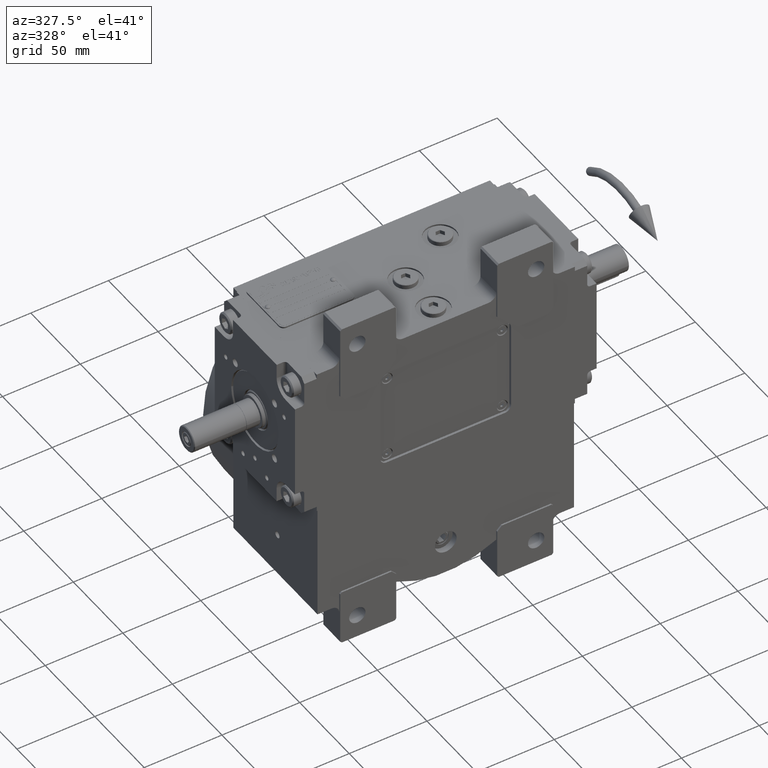
[diagram: clean part render]
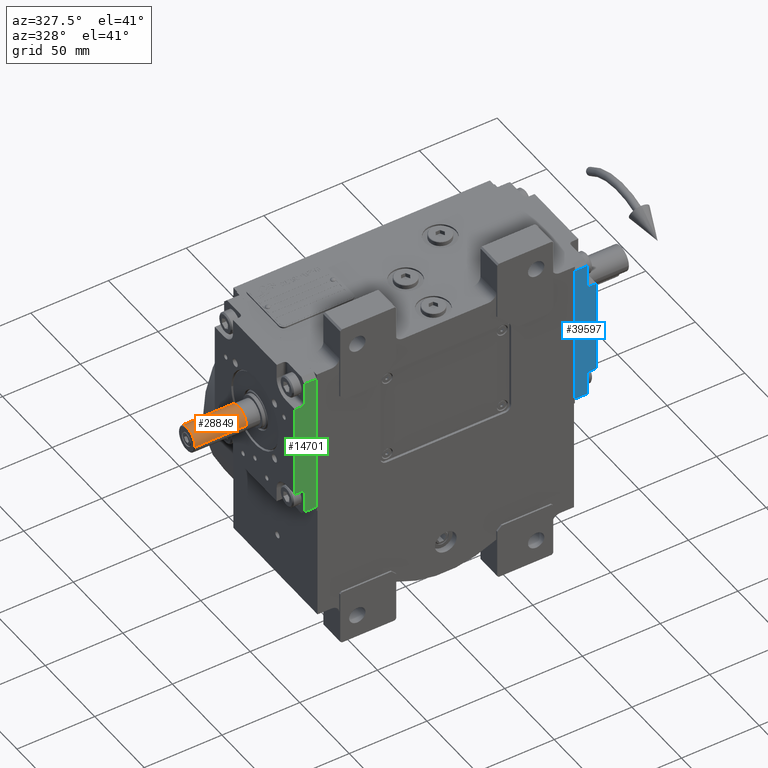
[diagram: same view with three faces highlighted in distinct colors, each labeled with its STEP entity id]
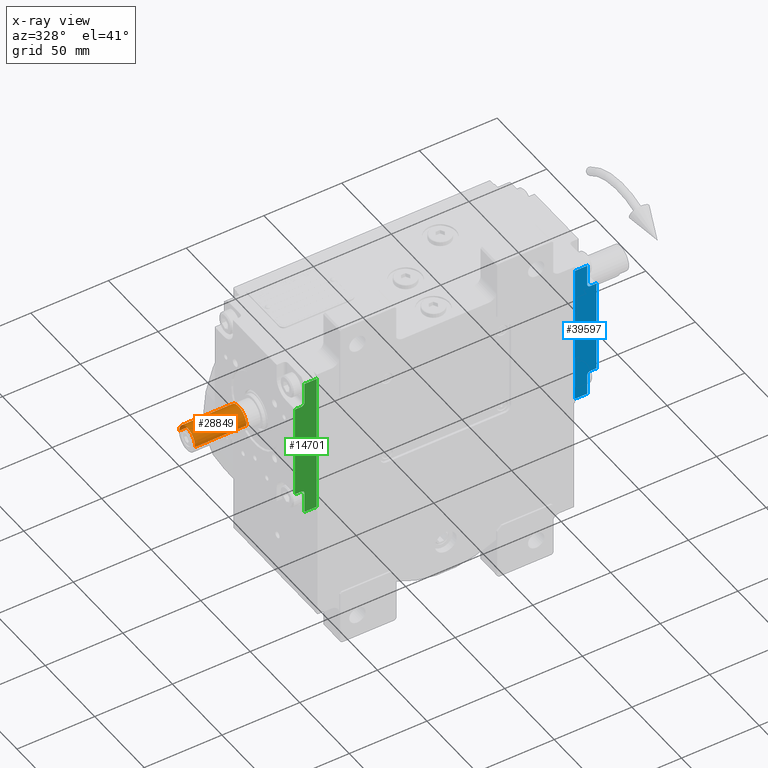
[diagram: x-ray of the same camera — body ghosted, the three highlighted faces saturated]
A machine part, auxiliary view with three faces highlighted in distinct colors.
The next image is the same camera in x-ray (body ghosted, the three faces saturated) — at least one of them is partly hidden behind the body in this view.
Their STEP definitions:

[orange] entity #28849 — the highlighted cylindrical surface (edge-blend (fillet) strip) has radius 8 mm, axis along (-1, 0, -0).
#780 = DIRECTION ( 'NONE',  ( 1.797417062147531962E-14, 0.000000000000000000, 1.000000000000000000 ) ) ;
#4080 = ORIENTED_EDGE ( 'NONE', *, *, #16221, .F. ) ;
#4341 = VERTEX_POINT ( 'NONE', #53684 ) ;
#4720 = EDGE_LOOP ( 'NONE', ( #6996, #39008, #7967, #4080 ) ) ;
#6996 = ORIENTED_EDGE ( 'NONE', *, *, #39639, .F. ) ;
#7967 = ORIENTED_EDGE ( 'NONE', *, *, #28014, .F. ) ;
#8633 = CIRCLE ( 'NONE', #49904, 8.000000000000000000 ) ;
#9045 = VERTEX_POINT ( 'NONE', #38044 ) ;
#12688 = LINE ( 'NONE', #42128, #44449 ) ;
#13989 = DIRECTION ( 'NONE',  ( -1.774068363909806881E-14, -2.168404344971008868E-16, -1.000000000000000000 ) ) ;
#16221 = EDGE_CURVE ( 'NONE', #4341, #32311, #8633, .T. ) ;
#18198 = AXIS2_PLACEMENT_3D ( 'NONE', #41852, #52189, #46088 ) ;
#18820 = DIRECTION ( 'NONE',  ( -2.220446049250370273E-16, -1.000000000000000000, 2.220446049249956368E-16 ) ) ;
#25044 = DIRECTION ( 'NONE',  ( 5.028988270783950259E-30, 1.000000000000000000, 3.217488641336500757E-29 ) ) ;
#28014 = EDGE_CURVE ( 'NONE', #32311, #9045, #57178, .T. ) ;
#28849 = ADVANCED_FACE ( 'NONE', ( #54512 ), #59337, .T. ) ;
#31580 = VECTOR ( 'NONE', #62356, 1000.000000000000000 ) ;
#32311 = VERTEX_POINT ( 'NONE', #43069 ) ;
#33076 = DIRECTION ( 'NONE',  ( -5.028988270783950259E-30, -1.000000000000000000, -3.217488641336500757E-29 ) ) ;
#35067 = CARTESIAN_POINT ( 'NONE',  ( 0.000000000000000000, 18.50000000000054357, -8.881784196997377044E-16 ) ) ;
#38044 = CARTESIAN_POINT ( 'NONE',  ( 0.000000000000000000, 18.50000000000054357, 7.999999999999965361 ) ) ;
#39008 = ORIENTED_EDGE ( 'NONE', *, *, #63212, .F. ) ;
#39639 = EDGE_CURVE ( 'NONE', #48112, #4341, #12688, .T. ) ;
#40770 = CIRCLE ( 'NONE', #62431, 8.000000000000000000 ) ;
#41852 = CARTESIAN_POINT ( 'NONE',  ( -8.326672684688674053E-14, -15.00000000000001421, -3.019858152799185818E-27 ) ) ;
#42128 = CARTESIAN_POINT ( 'NONE',  ( -5.828670879282071837E-13, 18.50000000000054357, -8.000000000000035527 ) ) ;
#43069 = CARTESIAN_POINT ( 'NONE',  ( 1.065558752344486493E-08, -14.50000000007528556, 7.999999999924675365 ) ) ;
#44449 = VECTOR ( 'NONE', #33076, 1000.000000000000000 ) ;
#46088 = DIRECTION ( 'NONE',  ( -1.809663530139005476E-14, 0.000000000000000000, -1.000000000000000000 ) ) ;
#48112 = VERTEX_POINT ( 'NONE', #52487 ) ;
#49904 = AXIS2_PLACEMENT_3D ( 'NONE', #53440, #18820, #13989 ) ;
#52189 = DIRECTION ( 'NONE',  ( -5.028988270783950259E-30, -1.000000000000000000, -3.217488641336500757E-29 ) ) ;
#52487 = CARTESIAN_POINT ( 'NONE',  ( -6.106226635438360972E-13, 18.50000000000054357, -8.000000000000035527 ) ) ;
#53440 = CARTESIAN_POINT ( 'NONE',  ( -8.326672684688674053E-14, -14.50000000000001243, -8.881784197025048313E-16 ) ) ;
#53684 = CARTESIAN_POINT ( 'NONE',  ( -8.326672684688674053E-14, -14.50000000000001243, -8.000000000000035527 ) ) ;
#54512 = FACE_OUTER_BOUND ( 'NONE', #4720, .T. ) ;
#57178 = LINE ( 'NONE', #60868, #31580 ) ;
#59337 = CYLINDRICAL_SURFACE ( 'NONE', #18198, 8.000000000000000000 ) ;
#60868 = CARTESIAN_POINT ( 'NONE',  ( 1.276756478318930021E-12, -14.50000000000001243, 7.999999999999965361 ) ) ;
#62356 = DIRECTION ( 'NONE',  ( 5.028988270783950259E-30, 1.000000000000000000, 3.217488641336500757E-29 ) ) ;
#62431 = AXIS2_PLACEMENT_3D ( 'NONE', #35067, #25044, #780 ) ;
#63212 = EDGE_CURVE ( 'NONE', #9045, #48112, #40770, .T. ) ;

[blue] entity #39597 — the highlighted planar face has unit normal (0, -1, 0).
#460 = AXIS2_PLACEMENT_3D ( 'NONE', #49788, #49482, #24587 ) ;
#955 = VECTOR ( 'NONE', #4369, 1000.000000000000000 ) ;
#1065 = LINE ( 'NONE', #59581, #1593 ) ;
#1593 = VECTOR ( 'NONE', #35020, 1000.000000000000000 ) ;
#1613 = ORIENTED_EDGE ( 'NONE', *, *, #19924, .T. ) ;
#1838 = CARTESIAN_POINT ( 'NONE',  ( 40.50000000000052580, -8.000000000001062261, 32.50000000000026290 ) ) ;
#1991 = VERTEX_POINT ( 'NONE', #1838 ) ;
#2014 = DIRECTION ( 'NONE',  ( -8.437694987151237039E-15, 2.109423746787905501E-15, -1.000000000000000000 ) ) ;
#2468 = AXIS2_PLACEMENT_3D ( 'NONE', #56146, #11861, #46793 ) ;
#2639 = DIRECTION ( 'NONE',  ( -8.437694987151237039E-15, 2.109423746787905501E-15, -1.000000000000000000 ) ) ;
#4193 = ORIENTED_EDGE ( 'NONE', *, *, #56208, .T. ) ;
#4369 = DIRECTION ( 'NONE',  ( -8.437694987151237039E-15, 2.109423746787905501E-15, -1.000000000000000000 ) ) ;
#5698 = CARTESIAN_POINT ( 'NONE',  ( 40.50000000000079581, -1.054711873393898713E-12, 49.00000000000000000 ) ) ;
#5702 = CARTESIAN_POINT ( 'NONE',  ( 40.50000000000079581, -14.00000000000105338, 30.50000000000026290 ) ) ;
#6194 = EDGE_CURVE ( 'NONE', #6780, #39679, #14690, .T. ) ;
#6227 = AXIS2_PLACEMENT_3D ( 'NONE', #5698, #30941, #53071 ) ;
#6780 = VERTEX_POINT ( 'NONE', #44709 ) ;
#7378 = VERTEX_POINT ( 'NONE', #16766 ) ;
#8235 = VERTEX_POINT ( 'NONE', #53999 ) ;
#8539 = CARTESIAN_POINT ( 'NONE',  ( 40.50000000000026290, -14.00000000000105338, -30.50000000000000000 ) ) ;
#9413 = CARTESIAN_POINT ( 'NONE',  ( 40.50000000000026290, -14.00000000000105338, -30.50000000000000000 ) ) ;
#9707 = CIRCLE ( 'NONE', #2468, 2.000000000000000000 ) ;
#10556 = FACE_OUTER_BOUND ( 'NONE', #35904, .T. ) ;
#10863 = LINE ( 'NONE', #50307, #35858 ) ;
#11088 = CARTESIAN_POINT ( 'NONE',  ( 40.50000000000052580, -8.000000000001062261, 46.00000000000000000 ) ) ;
#11861 = DIRECTION ( 'NONE',  ( -1.000000000000000000, 2.320366121466573698E-14, -8.437694987151233883E-15 ) ) ;
#13709 = LINE ( 'NONE', #8539, #26572 ) ;
#14690 = LINE ( 'NONE', #38018, #955 ) ;
#16071 = EDGE_CURVE ( 'NONE', #43455, #22175, #31208, .T. ) ;
#16621 = CARTESIAN_POINT ( 'NONE',  ( 40.50000000000079581, -14.00000000000105338, 30.50000000000026290 ) ) ;
#16766 = CARTESIAN_POINT ( 'NONE',  ( 40.50000000000052580, -8.000000000001062261, 46.00000000000000000 ) ) ;
#17853 = EDGE_CURVE ( 'NONE', #34146, #7378, #1065, .T. ) ;
#19004 = CARTESIAN_POINT ( 'NONE',  ( 40.50000000000079581, -14.00000000000105338, 30.50000000000026290 ) ) ;
#19551 = CARTESIAN_POINT ( 'NONE',  ( 40.50000000000052580, -1.054711873393898713E-12, 46.00000000000000000 ) ) ;
#19924 = EDGE_CURVE ( 'NONE', #1991, #48728, #9707, .T. ) ;
#21475 = ORIENTED_EDGE ( 'NONE', *, *, #60347, .T. ) ;
#22175 = VERTEX_POINT ( 'NONE', #9413 ) ;
#23236 = EDGE_CURVE ( 'NONE', #34146, #29499, #46319, .T. ) ;
#24211 = DIRECTION ( 'NONE',  ( -2.320366121466573698E-14, 1.000000000000000000, -2.109423746787906290E-15 ) ) ;
#24587 = DIRECTION ( 'NONE',  ( 6.938893903907222067E-15, 0.000000000000000000, 1.000000000000000000 ) ) ;
#25679 = ORIENTED_EDGE ( 'NONE', *, *, #26104, .F. ) ;
#26104 = EDGE_CURVE ( 'NONE', #43455, #48728, #49093, .T. ) ;
#26572 = VECTOR ( 'NONE', #33442, 1000.000000000000000 ) ;
#28759 = DIRECTION ( 'NONE',  ( 2.320366121466573698E-14, -1.000000000000000000, 2.109423746787906290E-15 ) ) ;
#29499 = VERTEX_POINT ( 'NONE', #52114 ) ;
#30149 = EDGE_CURVE ( 'NONE', #29499, #39679, #10863, .T. ) ;
#30941 = DIRECTION ( 'NONE',  ( 1.000000000000000000, -2.320366121466569912E-14, -8.437694987151285948E-15 ) ) ;
#31208 = LINE ( 'NONE', #16621, #39616 ) ;
#32537 = VECTOR ( 'NONE', #24211, 1000.000000000000000 ) ;
#33442 = DIRECTION ( 'NONE',  ( -2.320366121466573698E-14, 1.000000000000000000, -2.109423746787906290E-15 ) ) ;
#34146 = VERTEX_POINT ( 'NONE', #38775 ) ;
#34311 = CARTESIAN_POINT ( 'NONE',  ( 40.50000000000000000, -8.000000000001033840, -46.00000000000000000 ) ) ;
#35020 = DIRECTION ( 'NONE',  ( 2.320366121466573698E-14, -1.000000000000000000, 2.109423746787906290E-15 ) ) ;
#35858 = VECTOR ( 'NONE', #28759, 1000.000000000000000 ) ;
#35904 = EDGE_LOOP ( 'NONE', ( #50548, #39755, #57135, #45464, #1613, #25679, #36531, #21475, #4193, #47230 ) ) ;
#36531 = ORIENTED_EDGE ( 'NONE', *, *, #16071, .T. ) ;
#36609 = CIRCLE ( 'NONE', #460, 2.000000000000001776 ) ;
#38018 = CARTESIAN_POINT ( 'NONE',  ( 40.50000000000000000, -8.000000000001048051, -32.50000000000000000 ) ) ;
#38494 = CARTESIAN_POINT ( 'NONE',  ( 40.50000000000052580, -10.00000000000106404, 30.50000000000026290 ) ) ;
#38775 = CARTESIAN_POINT ( 'NONE',  ( 40.50000000000052580, -1.054711873393898713E-12, 46.00000000000000000 ) ) ;
#39597 = ADVANCED_FACE ( 'NONE', ( #10556 ), #49979, .T. ) ;
#39616 = VECTOR ( 'NONE', #50908, 1000.000000000000000 ) ;
#39679 = VERTEX_POINT ( 'NONE', #34311 ) ;
#39755 = ORIENTED_EDGE ( 'NONE', *, *, #23236, .F. ) ;
#39816 = EDGE_CURVE ( 'NONE', #7378, #1991, #41154, .T. ) ;
#41154 = LINE ( 'NONE', #11088, #47539 ) ;
#43089 = VECTOR ( 'NONE', #2014, 1000.000000000000000 ) ;
#43455 = VERTEX_POINT ( 'NONE', #5702 ) ;
#44709 = CARTESIAN_POINT ( 'NONE',  ( 40.50000000000000000, -8.000000000001048051, -32.50000000000000000 ) ) ;
#45464 = ORIENTED_EDGE ( 'NONE', *, *, #39816, .T. ) ;
#46319 = LINE ( 'NONE', #19551, #43089 ) ;
#46793 = DIRECTION ( 'NONE',  ( -2.428612866367529932E-14, 1.000000000000000000, -3.469446951953614189E-15 ) ) ;
#47230 = ORIENTED_EDGE ( 'NONE', *, *, #6194, .T. ) ;
#47539 = VECTOR ( 'NONE', #2639, 1000.000000000000000 ) ;
#48728 = VERTEX_POINT ( 'NONE', #38494 ) ;
#49093 = LINE ( 'NONE', #19004, #32537 ) ;
#49482 = DIRECTION ( 'NONE',  ( -1.000000000000000000, 2.320366121466573698E-14, -8.437694987151233883E-15 ) ) ;
#49788 = CARTESIAN_POINT ( 'NONE',  ( 40.50000000000000000, -10.00000000000104983, -32.50000000000000000 ) ) ;
#49979 = PLANE ( 'NONE',  #6227 ) ;
#50307 = CARTESIAN_POINT ( 'NONE',  ( 40.50000000000000000, -5.273559366969493567E-13, -46.00000000000000000 ) ) ;
#50548 = ORIENTED_EDGE ( 'NONE', *, *, #30149, .F. ) ;
#50908 = DIRECTION ( 'NONE',  ( -8.437694987151237039E-15, 2.109423746787905501E-15, -1.000000000000000000 ) ) ;
#52114 = CARTESIAN_POINT ( 'NONE',  ( 40.50000000000000000, -5.273559366969493567E-13, -46.00000000000000000 ) ) ;
#53071 = DIRECTION ( 'NONE',  ( -8.437694987151237039E-15, 2.109423746787905501E-15, -1.000000000000000000 ) ) ;
#53999 = CARTESIAN_POINT ( 'NONE',  ( 40.50000000000000000, -10.00000000000104983, -30.50000000000000000 ) ) ;
#56146 = CARTESIAN_POINT ( 'NONE',  ( 40.50000000000052580, -10.00000000000106404, 32.50000000000026290 ) ) ;
#56208 = EDGE_CURVE ( 'NONE', #8235, #6780, #36609, .T. ) ;
#57135 = ORIENTED_EDGE ( 'NONE', *, *, #17853, .T. ) ;
#59581 = CARTESIAN_POINT ( 'NONE',  ( 40.50000000000052580, -1.054711873393898713E-12, 46.00000000000000000 ) ) ;
#60347 = EDGE_CURVE ( 'NONE', #22175, #8235, #13709, .T. ) ;

[green] entity #14701 — the highlighted planar face has unit normal (0, -1, -0).
#20 = VECTOR ( 'NONE', #47608, 1000.000000000000000 ) ;
#1153 = ORIENTED_EDGE ( 'NONE', *, *, #9380, .T. ) ;
#1355 = EDGE_CURVE ( 'NONE', #25239, #55552, #21691, .T. ) ;
#1583 = CARTESIAN_POINT ( 'NONE',  ( -40.50000000000105871, -10.00000000000000888, -32.50000000000107292 ) ) ;
#1684 = VERTEX_POINT ( 'NONE', #41558 ) ;
#2040 = EDGE_CURVE ( 'NONE', #7522, #1684, #47077, .T. ) ;
#2180 = LINE ( 'NONE', #21901, #4893 ) ;
#2618 = CARTESIAN_POINT ( 'NONE',  ( -40.49999999999894840, -9.999999999999994671, 30.49999999999868194 ) ) ;
#3282 = DIRECTION ( 'NONE',  ( 1.000000000000000000, 5.501979271014792412E-29, 3.164135620181695509E-14 ) ) ;
#3489 = EDGE_CURVE ( 'NONE', #60568, #55552, #8902, .T. ) ;
#4487 = AXIS2_PLACEMENT_3D ( 'NONE', #61870, #31506, #6594 ) ;
#4796 = DIRECTION ( 'NONE',  ( -5.503425921419128482E-29, -1.000000000000000000, -4.218847493575605898E-15 ) ) ;
#4830 = EDGE_CURVE ( 'NONE', #60568, #10489, #32312, .T. ) ;
#4893 = VECTOR ( 'NONE', #61324, 1000.000000000000000 ) ;
#6594 = DIRECTION ( 'NONE',  ( 3.164135620181695509E-14, 4.218847493575605898E-15, 1.000000000000000000 ) ) ;
#7008 = DIRECTION ( 'NONE',  ( 3.164135620181695509E-14, 4.218847493575605898E-15, 1.000000000000000000 ) ) ;
#7522 = VERTEX_POINT ( 'NONE', #21164 ) ;
#8113 = EDGE_CURVE ( 'NONE', #14323, #7522, #9892, .T. ) ;
#8902 = LINE ( 'NONE', #33804, #32182 ) ;
#9380 = EDGE_CURVE ( 'NONE', #38006, #32943, #44337, .T. ) ;
#9883 = VECTOR ( 'NONE', #63701, 1000.000000000000000 ) ;
#9892 = CIRCLE ( 'NONE', #49106, 2.000000000000001776 ) ;
#10489 = VERTEX_POINT ( 'NONE', #60656 ) ;
#11344 = CARTESIAN_POINT ( 'NONE',  ( -40.50000000000132161, -8.000000000000007105, -46.00000000000105160 ) ) ;
#12885 = DIRECTION ( 'NONE',  ( 3.164135620181695509E-14, 4.218847493575605898E-15, 1.000000000000000000 ) ) ;
#13599 = CARTESIAN_POINT ( 'NONE',  ( -40.49999999999842260, 5.273559366969493567E-13, 45.99999999999867839 ) ) ;
#14323 = VERTEX_POINT ( 'NONE', #2618 ) ;
#14694 = DIRECTION ( 'NONE',  ( 5.503425921419128482E-29, 1.000000000000000000, 4.218847493575605898E-15 ) ) ;
#14701 = ADVANCED_FACE ( 'NONE', ( #21801 ), #45740, .T. ) ;
#15536 = DIRECTION ( 'NONE',  ( 3.164135620181695509E-14, 4.218847493575605898E-15, 1.000000000000000000 ) ) ;
#15937 = CARTESIAN_POINT ( 'NONE',  ( -40.50000000000105871, -8.000000000000007105, -32.50000000000107292 ) ) ;
#18175 = VECTOR ( 'NONE', #4796, 1000.000000000000000 ) ;
#18751 = EDGE_CURVE ( 'NONE', #60674, #1684, #54599, .T. ) ;
#21164 = CARTESIAN_POINT ( 'NONE',  ( -40.49999999999868550, -7.999999999999992895, 32.49999999999868550 ) ) ;
#21580 = CARTESIAN_POINT ( 'NONE',  ( -40.50000000000079581, -10.00000000000000888, -30.50000000000106937 ) ) ;
#21691 = CIRCLE ( 'NONE', #54731, 2.000000000000000000 ) ;
#21728 = VECTOR ( 'NONE', #7008, 1000.000000000000000 ) ;
#21801 = FACE_OUTER_BOUND ( 'NONE', #34803, .T. ) ;
#21901 = CARTESIAN_POINT ( 'NONE',  ( -40.49999999999894840, -13.99999999999999822, 30.49999999999868194 ) ) ;
#23874 = ORIENTED_EDGE ( 'NONE', *, *, #3489, .F. ) ;
#24370 = CARTESIAN_POINT ( 'NONE',  ( -40.50000000000132161, 0.000000000000000000, -46.00000000000105160 ) ) ;
#25237 = LINE ( 'NONE', #11344, #39752 ) ;
#25239 = VERTEX_POINT ( 'NONE', #15937 ) ;
#25498 = CARTESIAN_POINT ( 'NONE',  ( -40.49999999999842260, 5.273559366969493567E-13, 45.99999999999867839 ) ) ;
#26683 = ORIENTED_EDGE ( 'NONE', *, *, #8113, .T. ) ;
#27905 = LINE ( 'NONE', #37906, #20 ) ;
#29605 = ORIENTED_EDGE ( 'NONE', *, *, #36269, .T. ) ;
#30497 = ORIENTED_EDGE ( 'NONE', *, *, #2040, .T. ) ;
#31049 = ORIENTED_EDGE ( 'NONE', *, *, #46397, .T. ) ;
#31506 = DIRECTION ( 'NONE',  ( -1.000000000000000000, 2.119603199005888641E-28, 3.164135620181695509E-14 ) ) ;
#32182 = VECTOR ( 'NONE', #14694, 1000.000000000000000 ) ;
#32312 = LINE ( 'NONE', #42638, #37978 ) ;
#32943 = VERTEX_POINT ( 'NONE', #47829 ) ;
#33804 = CARTESIAN_POINT ( 'NONE',  ( -40.50000000000079581, -14.00000000000001243, -30.50000000000106937 ) ) ;
#34803 = EDGE_LOOP ( 'NONE', ( #44534, #29605, #26683, #30497, #38500, #37678, #1153, #31049, #62024, #23874 ) ) ;
#35861 = DIRECTION ( 'NONE',  ( 0.000000000000000000, 1.000000000000000000, 3.469446951953614189E-15 ) ) ;
#36269 = EDGE_CURVE ( 'NONE', #10489, #14323, #2180, .T. ) ;
#36731 = CARTESIAN_POINT ( 'NONE',  ( -40.49999999999868550, -7.999999999999992895, 32.49999999999868550 ) ) ;
#37678 = ORIENTED_EDGE ( 'NONE', *, *, #39657, .F. ) ;
#37906 = CARTESIAN_POINT ( 'NONE',  ( -40.50000000000132161, 0.000000000000000000, -46.00000000000105160 ) ) ;
#37978 = VECTOR ( 'NONE', #12885, 1000.000000000000000 ) ;
#38006 = VERTEX_POINT ( 'NONE', #24370 ) ;
#38500 = ORIENTED_EDGE ( 'NONE', *, *, #18751, .F. ) ;
#39657 = EDGE_CURVE ( 'NONE', #38006, #60674, #27905, .T. ) ;
#39752 = VECTOR ( 'NONE', #15536, 1000.000000000000000 ) ;
#41357 = DIRECTION ( 'NONE',  ( 1.000000000000000000, 5.501979271014792412E-29, 3.164135620181695509E-14 ) ) ;
#41558 = CARTESIAN_POINT ( 'NONE',  ( -40.49999999999842260, -7.999999999999979572, 45.99999999999867839 ) ) ;
#42638 = CARTESIAN_POINT ( 'NONE',  ( -40.50000000000079581, -14.00000000000001243, -30.50000000000106937 ) ) ;
#44337 = LINE ( 'NONE', #53046, #9883 ) ;
#44534 = ORIENTED_EDGE ( 'NONE', *, *, #4830, .T. ) ;
#45740 = PLANE ( 'NONE',  #4487 ) ;
#46397 = EDGE_CURVE ( 'NONE', #32943, #25239, #25237, .T. ) ;
#47077 = LINE ( 'NONE', #36731, #21728 ) ;
#47608 = DIRECTION ( 'NONE',  ( 3.164135620181695509E-14, 4.218847493575605898E-15, 1.000000000000000000 ) ) ;
#47829 = CARTESIAN_POINT ( 'NONE',  ( -40.50000000000132161, -8.000000000000007105, -46.00000000000105160 ) ) ;
#49106 = AXIS2_PLACEMENT_3D ( 'NONE', #53689, #3282, #57909 ) ;
#53046 = CARTESIAN_POINT ( 'NONE',  ( -40.50000000000132161, 0.000000000000000000, -46.00000000000105160 ) ) ;
#53689 = CARTESIAN_POINT ( 'NONE',  ( -40.49999999999868550, -9.999999999999994671, 32.49999999999868550 ) ) ;
#54599 = LINE ( 'NONE', #25498, #18175 ) ;
#54731 = AXIS2_PLACEMENT_3D ( 'NONE', #1583, #41357, #35861 ) ;
#55552 = VERTEX_POINT ( 'NONE', #21580 ) ;
#57909 = DIRECTION ( 'NONE',  ( -3.122502256758250246E-14, -2.602085213965208275E-15, -1.000000000000000000 ) ) ;
#60568 = VERTEX_POINT ( 'NONE', #62747 ) ;
#60656 = CARTESIAN_POINT ( 'NONE',  ( -40.49999999999894840, -13.99999999999999822, 30.49999999999868194 ) ) ;
#60674 = VERTEX_POINT ( 'NONE', #13599 ) ;
#61324 = DIRECTION ( 'NONE',  ( 5.503425921419128482E-29, 1.000000000000000000, 4.218847493575605898E-15 ) ) ;
#61870 = CARTESIAN_POINT ( 'NONE',  ( -40.50000000000132161, -5.273559366969493567E-13, -49.00000000000105871 ) ) ;
#62024 = ORIENTED_EDGE ( 'NONE', *, *, #1355, .T. ) ;
#62747 = CARTESIAN_POINT ( 'NONE',  ( -40.50000000000079581, -14.00000000000001243, -30.50000000000106937 ) ) ;
#63701 = DIRECTION ( 'NONE',  ( -5.503425921419128482E-29, -1.000000000000000000, -4.218847493575605898E-15 ) ) ;